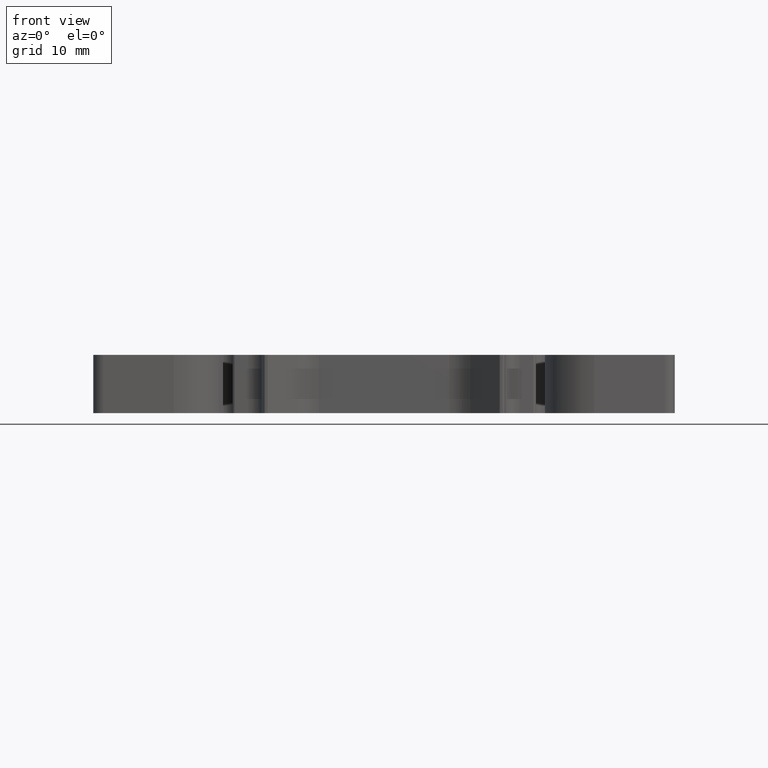
[diagram: clean part render]
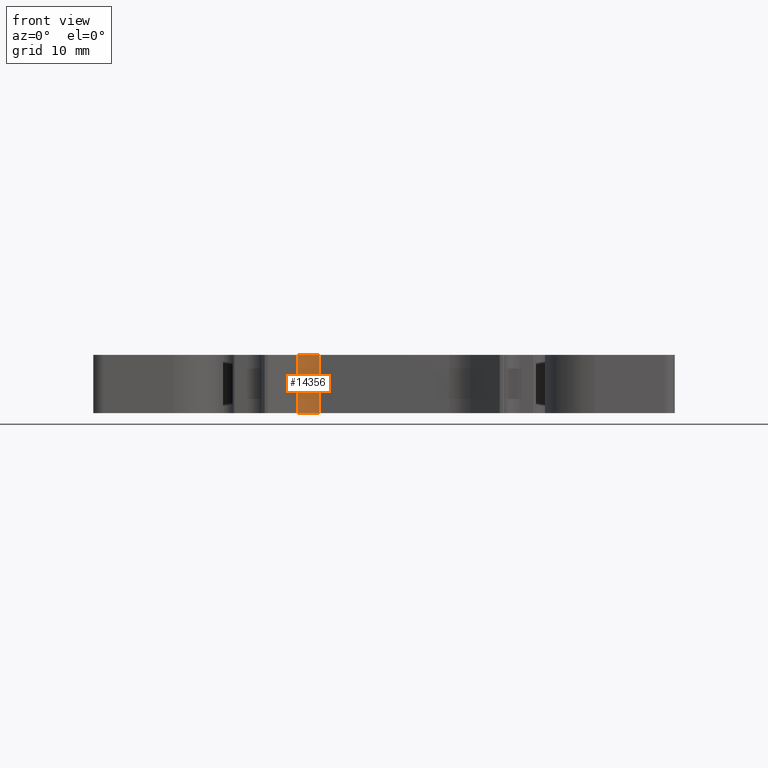
[diagram: same view with one face highlighted and labeled with its STEP entity id]
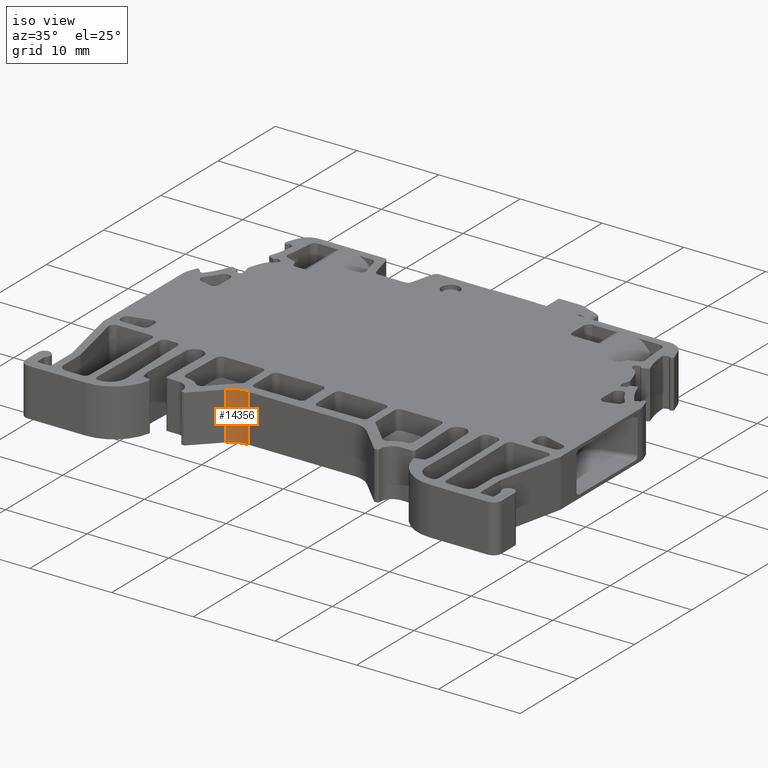
[diagram: same view with one face highlighted and labeled with its STEP entity id]
A machine part, front view. The second image highlights one B-rep face of the part: STEP entity #14356.
A second angle (iso view) of the same face is appended — the face is thin or edge-on in the first view.
In plain terms, the highlighted cylindrical surface (edge-blend (fillet) strip) has radius 3 mm, axis along (0, 0, 1).
Its self-contained STEP definition (entity closure, byte-faithful):
#4357 = LINE ( 'NONE', #4366, #27456 ) ;
#4366 = CARTESIAN_POINT ( 'NONE',  ( 1012.414006129140000, 934.6662678189230700, -5.850000000000000500 ) ) ;
#4399 = DIRECTION ( 'NONE',  ( 0.0000000000000000000, 0.0000000000000000000, 1.000000000000000000 ) ) ;
#4874 = CIRCLE ( 'NONE', #4943, 2.999985995253640100 ) ;
#4943 = AXIS2_PLACEMENT_3D ( 'NONE', #5952, #5955, #5959 ) ;
#5915 = DIRECTION ( 'NONE',  ( 0.0000000000000000000, 0.0000000000000000000, 1.000000000000000000 ) ) ;
#5952 = CARTESIAN_POINT ( 'NONE',  ( 1012.414000328181800, 931.6662818236760600, 0.0000000000000000000 ) ) ;
#5955 = DIRECTION ( 'NONE',  ( 0.0000000000000000000, 0.0000000000000000000, -1.000000000000000000 ) ) ;
#5959 = DIRECTION ( 'NONE',  ( 1.000000000000000000, 0.0000000000000000000, 0.0000000000000000000 ) ) ;
#5972 = CARTESIAN_POINT ( 'NONE',  ( 1010.292693989375900, 933.7875963662770600, -5.850000000000000500 ) ) ;
#5991 = LINE ( 'NONE', #5972, #22541 ) ;
#10581 = EDGE_LOOP ( 'NONE', ( #13841, #14028, #13887, #13951 ) ) ;
#11289 = EDGE_CURVE ( 'NONE', #18122, #12503, #5991, .T. ) ;
#11296 = EDGE_CURVE ( 'NONE', #12503, #12237, #4874, .T. ) ;
#12237 = VERTEX_POINT ( 'NONE', #41582 ) ;
#12309 = VERTEX_POINT ( 'NONE', #41635 ) ;
#12503 = VERTEX_POINT ( 'NONE', #41947 ) ;
#13841 = ORIENTED_EDGE ( 'NONE', *, *, #11296, .F. ) ;
#13887 = ORIENTED_EDGE ( 'NONE', *, *, #14758, .T. ) ;
#13951 = ORIENTED_EDGE ( 'NONE', *, *, #20087, .T. ) ;
#14028 = ORIENTED_EDGE ( 'NONE', *, *, #11289, .F. ) ;
#14356 = ADVANCED_FACE ( 'NONE', ( #35350 ), #35321, .F. ) ;
#14758 = EDGE_CURVE ( 'NONE', #18122, #12309, #26649, .T. ) ;
#18122 = VERTEX_POINT ( 'NONE', #21436 ) ;
#20087 = EDGE_CURVE ( 'NONE', #12309, #12237, #4357, .T. ) ;
#21436 = CARTESIAN_POINT ( 'NONE',  ( 1010.292693989375900, 933.7875963662770600, -5.850000000000000500 ) ) ;
#22541 = VECTOR ( 'NONE', #5915, 1000.000000000000000 ) ;
#26028 = CARTESIAN_POINT ( 'NONE',  ( 1012.414000328181800, 931.6662818236760600, -5.850000000000000500 ) ) ;
#26030 = DIRECTION ( 'NONE',  ( 1.000000000000000000, 0.0000000000000000000, 0.0000000000000000000 ) ) ;
#26037 = DIRECTION ( 'NONE',  ( 0.0000000000000000000, 0.0000000000000000000, -1.000000000000000000 ) ) ;
#26649 = CIRCLE ( 'NONE', #26661, 2.999985995253640100 ) ;
#26661 = AXIS2_PLACEMENT_3D ( 'NONE', #26028, #26037, #26030 ) ;
#27456 = VECTOR ( 'NONE', #4399, 1000.000000000000000 ) ;
#32851 = AXIS2_PLACEMENT_3D ( 'NONE', #35352, #35340, #35328 ) ;
#35321 = CYLINDRICAL_SURFACE ( 'NONE', #32851, 2.999985995253640100 ) ;
#35328 = DIRECTION ( 'NONE',  ( 1.000000000000000000, 0.0000000000000000000, 0.0000000000000000000 ) ) ;
#35340 = DIRECTION ( 'NONE',  ( 0.0000000000000000000, 0.0000000000000000000, 1.000000000000000000 ) ) ;
#35350 = FACE_OUTER_BOUND ( 'NONE', #10581, .T. ) ;
#35352 = CARTESIAN_POINT ( 'NONE',  ( 1012.414000328181800, 931.6662818236760600, -5.850000000000000500 ) ) ;
#41582 = CARTESIAN_POINT ( 'NONE',  ( 1012.414006129140000, 934.6662678189230700, 0.0000000000000000000 ) ) ;
#41635 = CARTESIAN_POINT ( 'NONE',  ( 1012.414006129140000, 934.6662678189230700, -5.850000000000000500 ) ) ;
#41947 = CARTESIAN_POINT ( 'NONE',  ( 1010.292693989375900, 933.7875963662770600, 0.0000000000000000000 ) ) ;